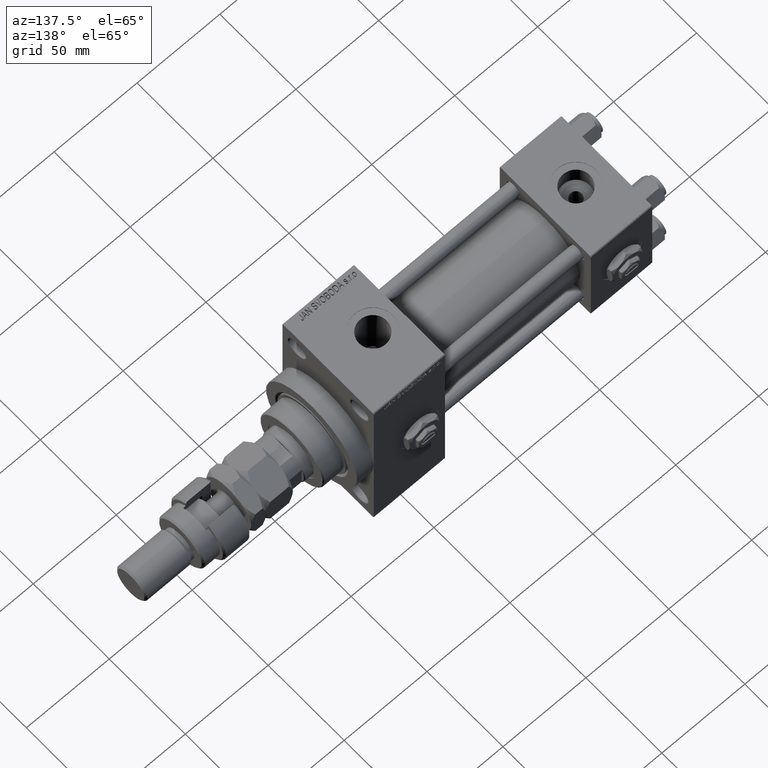
[diagram: clean part render]
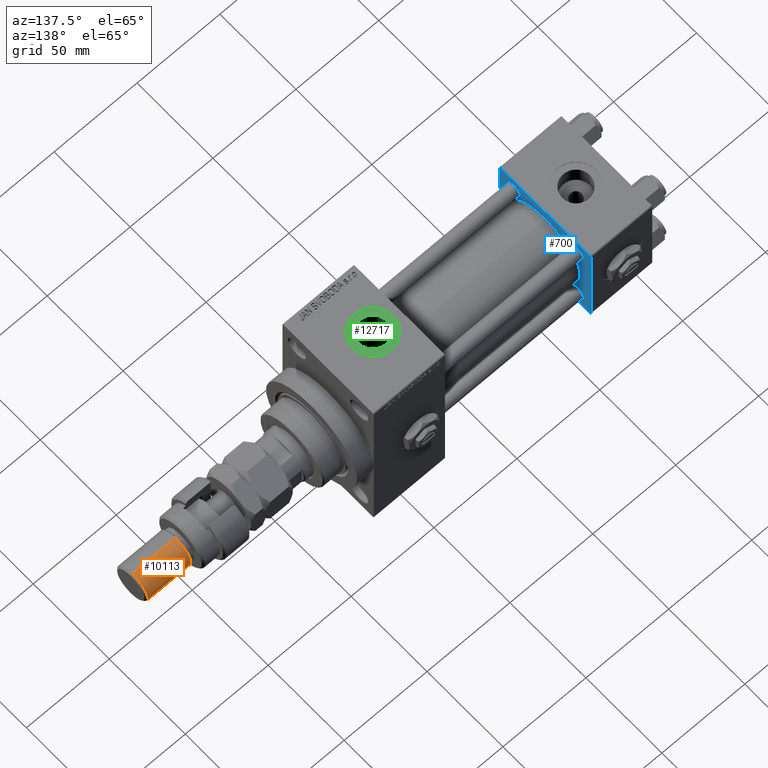
[diagram: same view with three faces highlighted in distinct colors, each labeled with its STEP entity id]
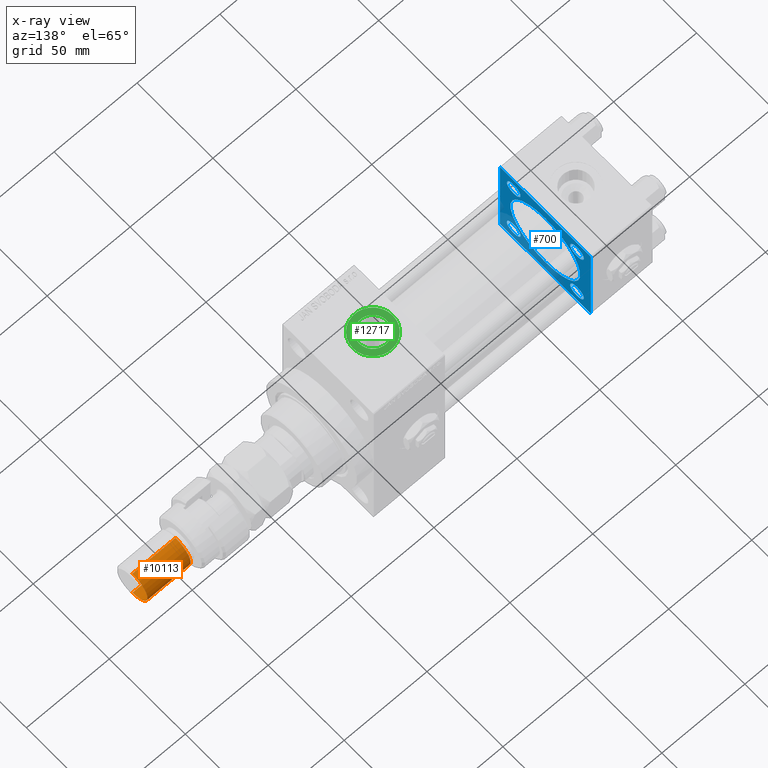
[diagram: x-ray of the same camera — body ghosted, the three highlighted faces saturated]
A machine part, auxiliary view with three faces highlighted in distinct colors.
The next image is the same camera in x-ray (body ghosted, the three faces saturated) — at least one of them is partly hidden behind the body in this view.
Their STEP definitions:

[orange] entity #10113 — the highlighted cylindrical surface (edge-blend (fillet) strip) has radius 10 mm, axis along (-1, -0, 0).
#2290 = DIRECTION ( 'NONE',  ( -0.000000000000000000, -0.000000000000000000, -1.000000000000000000 ) ) ;
#4973 = CARTESIAN_POINT ( 'NONE',  ( 10.00000000000000000, 1.224646799147353256E-15, 54.99999999999998579 ) ) ;
#6353 = EDGE_CURVE ( 'NONE', #13177, #28549, #38523, .T. ) ;
#6756 = EDGE_LOOP ( 'NONE', ( #49481, #37646, #36465, #28151 ) ) ;
#7033 = LINE ( 'NONE', #39386, #36993 ) ;
#8060 = CARTESIAN_POINT ( 'NONE',  ( -10.00000000000000000, 0.000000000000000000, 56.00000000000000711 ) ) ;
#8816 = DIRECTION ( 'NONE',  ( 0.000000000000000000, 0.000000000000000000, -1.000000000000000000 ) ) ;
#10113 = ADVANCED_FACE ( 'NONE', ( #14385 ), #18107, .T. ) ;
#10131 = DIRECTION ( 'NONE',  ( -1.000000000000000000, 0.000000000000000000, 0.000000000000000000 ) ) ;
#12570 = EDGE_CURVE ( 'NONE', #45431, #28549, #47323, .T. ) ;
#13177 = VERTEX_POINT ( 'NONE', #40495 ) ;
#14385 = FACE_OUTER_BOUND ( 'NONE', #6756, .T. ) ;
#16729 = CIRCLE ( 'NONE', #22635, 10.00000000000000000 ) ;
#17543 = AXIS2_PLACEMENT_3D ( 'NONE', #37983, #46450, #10131 ) ;
#18107 = CYLINDRICAL_SURFACE ( 'NONE', #17543, 10.00000000000000000 ) ;
#19734 = EDGE_CURVE ( 'NONE', #45431, #32339, #16729, .T. ) ;
#20491 = DIRECTION ( 'NONE',  ( 1.000000000000000000, 0.000000000000000000, 0.000000000000000000 ) ) ;
#22635 = AXIS2_PLACEMENT_3D ( 'NONE', #37716, #8816, #49901 ) ;
#24472 = DIRECTION ( 'NONE',  ( -0.000000000000000000, -0.000000000000000000, 1.000000000000000000 ) ) ;
#25045 = CARTESIAN_POINT ( 'NONE',  ( -10.00000000000000000, 0.000000000000000000, 54.99999999999998579 ) ) ;
#28151 = ORIENTED_EDGE ( 'NONE', *, *, #12570, .F. ) ;
#28445 = CARTESIAN_POINT ( 'NONE',  ( 0.000000000000000000, 0.000000000000000000, 29.00000000000000711 ) ) ;
#28549 = VERTEX_POINT ( 'NONE', #38201 ) ;
#32339 = VERTEX_POINT ( 'NONE', #4973 ) ;
#35920 = DIRECTION ( 'NONE',  ( -0.000000000000000000, -0.000000000000000000, -1.000000000000000000 ) ) ;
#36465 = ORIENTED_EDGE ( 'NONE', *, *, #6353, .T. ) ;
#36993 = VECTOR ( 'NONE', #2290, 1000.000000000000000 ) ;
#37646 = ORIENTED_EDGE ( 'NONE', *, *, #41077, .T. ) ;
#37716 = CARTESIAN_POINT ( 'NONE',  ( 0.000000000000000000, 0.000000000000000000, 54.99999999999998579 ) ) ;
#37983 = CARTESIAN_POINT ( 'NONE',  ( 0.000000000000000000, 0.000000000000000000, 56.00000000000000711 ) ) ;
#38201 = CARTESIAN_POINT ( 'NONE',  ( -10.00000000000000000, 0.000000000000000000, 29.00000000000000711 ) ) ;
#38523 = CIRCLE ( 'NONE', #48703, 10.00000000000000000 ) ;
#39386 = CARTESIAN_POINT ( 'NONE',  ( 10.00000000000000000, 1.224646799147353256E-15, 56.00000000000000711 ) ) ;
#40495 = CARTESIAN_POINT ( 'NONE',  ( 10.00000000000000000, 1.224646799147353256E-15, 29.00000000000000711 ) ) ;
#41077 = EDGE_CURVE ( 'NONE', #32339, #13177, #7033, .T. ) ;
#43604 = VECTOR ( 'NONE', #35920, 1000.000000000000000 ) ;
#45431 = VERTEX_POINT ( 'NONE', #25045 ) ;
#46450 = DIRECTION ( 'NONE',  ( -0.000000000000000000, -0.000000000000000000, -1.000000000000000000 ) ) ;
#47323 = LINE ( 'NONE', #8060, #43604 ) ;
#48703 = AXIS2_PLACEMENT_3D ( 'NONE', #28445, #24472, #20491 ) ;
#49481 = ORIENTED_EDGE ( 'NONE', *, *, #19734, .T. ) ;
#49901 = DIRECTION ( 'NONE',  ( 1.000000000000000000, 0.000000000000000000, 0.000000000000000000 ) ) ;

[blue] entity #700 — the highlighted planar face has unit normal (-1, 0, 0).
#213 = DIRECTION ( 'NONE',  ( 0.000000000000000000, 0.7071067811865474617, -0.7071067811865474617 ) ) ;
#364 = CARTESIAN_POINT ( 'NONE',  ( 37.00000000000000000, -29.50000000000000000, -30.00000000000000711 ) ) ;
#573 = AXIS2_PLACEMENT_3D ( 'NONE', #8086, #11824, #20046 ) ;
#653 = EDGE_CURVE ( 'NONE', #36767, #14816, #9541, .T. ) ;
#700 = ADVANCED_FACE ( 'NONE', ( #11106, #7897, #15882, #40251, #27275, #43424 ), #23307, .F. ) ;
#1166 = VECTOR ( 'NONE', #27630, 1000.000000000000000 ) ;
#1238 = VERTEX_POINT ( 'NONE', #30076 ) ;
#1273 = VERTEX_POINT ( 'NONE', #50732 ) ;
#1498 = ORIENTED_EDGE ( 'NONE', *, *, #44408, .F. ) ;
#1710 = DIRECTION ( 'NONE',  ( 0.000000000000000000, 0.000000000000000000, 1.000000000000000000 ) ) ;
#1938 = CARTESIAN_POINT ( 'NONE',  ( 37.00000000000000000, -30.00000000000000000, 29.99999999999999289 ) ) ;
#2538 = DIRECTION ( 'NONE',  ( 0.000000000000000000, 0.000000000000000000, 1.000000000000000000 ) ) ;
#2871 = ORIENTED_EDGE ( 'NONE', *, *, #49032, .T. ) ;
#2885 = LINE ( 'NONE', #43697, #25274 ) ;
#3413 = VECTOR ( 'NONE', #18386, 1000.000000000000000 ) ;
#3551 = ORIENTED_EDGE ( 'NONE', *, *, #42998, .T. ) ;
#3581 = EDGE_CURVE ( 'NONE', #23069, #10434, #24444, .T. ) ;
#5651 = CARTESIAN_POINT ( 'NONE',  ( 37.00000000000000711, -2.602085213965210642E-15, 23.00000000000000000 ) ) ;
#5827 = VECTOR ( 'NONE', #213, 1000.000000000000114 ) ;
#5850 = EDGE_LOOP ( 'NONE', ( #7027, #36804 ) ) ;
#5900 = LINE ( 'NONE', #1938, #3413 ) ;
#6710 = ORIENTED_EDGE ( 'NONE', *, *, #29149, .T. ) ;
#7027 = ORIENTED_EDGE ( 'NONE', *, *, #653, .T. ) ;
#7379 = CIRCLE ( 'NONE', #19366, 23.00000000000000000 ) ;
#7897 = FACE_BOUND ( 'NONE', #29691, .T. ) ;
#7909 = DIRECTION ( 'NONE',  ( -0.000000000000000000, -0.7071067811865474617, -0.7071067811865474617 ) ) ;
#8086 = CARTESIAN_POINT ( 'NONE',  ( 37.00000000000000000, 20.84999999999999787, -20.85000000000000142 ) ) ;
#8469 = EDGE_LOOP ( 'NONE', ( #35682, #27532 ) ) ;
#8711 = CARTESIAN_POINT ( 'NONE',  ( 37.00000000000000000, 20.84999999999999787, -25.35000000000003340 ) ) ;
#9541 = CIRCLE ( 'NONE', #44240, 4.500000000000031974 ) ;
#9997 = CARTESIAN_POINT ( 'NONE',  ( 37.00000000000000000, 20.84999999999999787, 20.85000000000000142 ) ) ;
#10271 = CIRCLE ( 'NONE', #39908, 4.500000000000031974 ) ;
#10434 = VERTEX_POINT ( 'NONE', #23593 ) ;
#10535 = VERTEX_POINT ( 'NONE', #44757 ) ;
#11052 = DIRECTION ( 'NONE',  ( 0.000000000000000000, -0.7071067811865474617, 0.7071067811865474617 ) ) ;
#11106 = FACE_BOUND ( 'NONE', #38210, .T. ) ;
#11406 = CARTESIAN_POINT ( 'NONE',  ( 37.00000000000000000, 29.99999999999999289, 30.00000000000000000 ) ) ;
#11684 = AXIS2_PLACEMENT_3D ( 'NONE', #13135, #35043, #1710 ) ;
#11690 = VECTOR ( 'NONE', #28884, 1000.000000000000000 ) ;
#11824 = DIRECTION ( 'NONE',  ( -1.000000000000000000, 0.000000000000000000, -0.000000000000000000 ) ) ;
#12701 = CARTESIAN_POINT ( 'NONE',  ( 37.00000000000000000, 29.99999999999999289, -30.00000000000000000 ) ) ;
#12786 = ORIENTED_EDGE ( 'NONE', *, *, #22968, .T. ) ;
#13073 = VERTEX_POINT ( 'NONE', #51633 ) ;
#13135 = CARTESIAN_POINT ( 'NONE',  ( 37.00000000000000711, -2.602085213965210642E-15, 0.000000000000000000 ) ) ;
#13311 = EDGE_CURVE ( 'NONE', #36989, #1238, #43643, .T. ) ;
#14030 = AXIS2_PLACEMENT_3D ( 'NONE', #42312, #18475, #2538 ) ;
#14218 = AXIS2_PLACEMENT_3D ( 'NONE', #9997, #14254, #26436 ) ;
#14254 = DIRECTION ( 'NONE',  ( -1.000000000000000000, 0.000000000000000000, -0.000000000000000000 ) ) ;
#14764 = DIRECTION ( 'NONE',  ( -1.000000000000000000, 0.000000000000000000, -0.000000000000000000 ) ) ;
#14816 = VERTEX_POINT ( 'NONE', #49912 ) ;
#14892 = EDGE_CURVE ( 'NONE', #27586, #20311, #35321, .T. ) ;
#15882 = FACE_BOUND ( 'NONE', #8469, .T. ) ;
#16132 = EDGE_LOOP ( 'NONE', ( #17967, #24614, #37008, #3551, #24789, #42752, #6710, #2871 ) ) ;
#16144 = CARTESIAN_POINT ( 'NONE',  ( 37.00000000000000000, -29.50000000000001066, -30.00000000000000711 ) ) ;
#16270 = VERTEX_POINT ( 'NONE', #41323 ) ;
#16498 = CARTESIAN_POINT ( 'NONE',  ( 37.00000000000000000, 20.84999999999999787, 16.34999999999996945 ) ) ;
#17964 = CARTESIAN_POINT ( 'NONE',  ( 37.00000000000000000, -20.84999999999999076, 20.85000000000000497 ) ) ;
#17967 = ORIENTED_EDGE ( 'NONE', *, *, #21049, .F. ) ;
#18292 = VERTEX_POINT ( 'NONE', #8711 ) ;
#18386 = DIRECTION ( 'NONE',  ( 0.000000000000000000, 0.000000000000000000, -1.000000000000000000 ) ) ;
#18475 = DIRECTION ( 'NONE',  ( -1.000000000000000000, 0.000000000000000000, -0.000000000000000000 ) ) ;
#18483 = DIRECTION ( 'NONE',  ( 0.000000000000000000, 0.000000000000000000, 1.000000000000000000 ) ) ;
#18497 = LINE ( 'NONE', #34655, #23543 ) ;
#18693 = CARTESIAN_POINT ( 'NONE',  ( 37.00000000000000000, 29.99999999999999289, -29.50000000000000000 ) ) ;
#18853 = LINE ( 'NONE', #11406, #36469 ) ;
#18981 = DIRECTION ( 'NONE',  ( -1.000000000000000000, 0.000000000000000000, -0.000000000000000000 ) ) ;
#19296 = CIRCLE ( 'NONE', #11684, 23.00000000000000000 ) ;
#19366 = AXIS2_PLACEMENT_3D ( 'NONE', #22099, #41437, #21309 ) ;
#19559 = CARTESIAN_POINT ( 'NONE',  ( 37.00000000000000000, 29.49999999999997868, -30.00000000000000000 ) ) ;
#20043 = VERTEX_POINT ( 'NONE', #50810 ) ;
#20046 = DIRECTION ( 'NONE',  ( 0.000000000000000000, 0.000000000000000000, 1.000000000000000000 ) ) ;
#20049 = CARTESIAN_POINT ( 'NONE',  ( 37.00000000000000000, -20.84999999999999076, 20.85000000000000497 ) ) ;
#20224 = CIRCLE ( 'NONE', #44752, 4.500000000000031974 ) ;
#20311 = VERTEX_POINT ( 'NONE', #18693 ) ;
#20659 = CARTESIAN_POINT ( 'NONE',  ( 37.00000000000000000, 29.49999999999999289, 30.00000000000000000 ) ) ;
#21049 = EDGE_CURVE ( 'NONE', #27586, #23953, #37606, .T. ) ;
#21309 = DIRECTION ( 'NONE',  ( 0.000000000000000000, 0.000000000000000000, 1.000000000000000000 ) ) ;
#22099 = CARTESIAN_POINT ( 'NONE',  ( 37.00000000000000711, -2.602085213965210642E-15, 0.000000000000000000 ) ) ;
#22180 = DIRECTION ( 'NONE',  ( 0.000000000000000000, 0.000000000000000000, 1.000000000000000000 ) ) ;
#22968 = EDGE_CURVE ( 'NONE', #1238, #36989, #20224, .T. ) ;
#23069 = VERTEX_POINT ( 'NONE', #20659 ) ;
#23307 = PLANE ( 'NONE',  #23947 ) ;
#23468 = CIRCLE ( 'NONE', #573, 4.500000000000031974 ) ;
#23543 = VECTOR ( 'NONE', #11052, 1000.000000000000114 ) ;
#23593 = CARTESIAN_POINT ( 'NONE',  ( 37.00000000000000000, -29.49999999999998579, 29.99999999999999289 ) ) ;
#23947 = AXIS2_PLACEMENT_3D ( 'NONE', #32568, #49242, #48462 ) ;
#23953 = VERTEX_POINT ( 'NONE', #364 ) ;
#24444 = LINE ( 'NONE', #36371, #1166 ) ;
#24614 = ORIENTED_EDGE ( 'NONE', *, *, #14892, .T. ) ;
#24789 = ORIENTED_EDGE ( 'NONE', *, *, #3581, .T. ) ;
#25274 = VECTOR ( 'NONE', #7909, 1000.000000000000114 ) ;
#26436 = DIRECTION ( 'NONE',  ( 0.000000000000000000, 0.000000000000000000, 1.000000000000000000 ) ) ;
#26537 = DIRECTION ( 'NONE',  ( 0.000000000000000000, 0.000000000000000000, -1.000000000000000000 ) ) ;
#27058 = CARTESIAN_POINT ( 'NONE',  ( 37.00000000000000000, -20.84999999999999076, -25.35000000000003695 ) ) ;
#27275 = FACE_BOUND ( 'NONE', #48293, .T. ) ;
#27532 = ORIENTED_EDGE ( 'NONE', *, *, #39180, .T. ) ;
#27586 = VERTEX_POINT ( 'NONE', #19559 ) ;
#27630 = DIRECTION ( 'NONE',  ( 0.000000000000000000, -1.000000000000000000, -1.156482317317871725E-16 ) ) ;
#28884 = DIRECTION ( 'NONE',  ( 0.000000000000000000, -1.000000000000000000, -1.156482317317871725E-16 ) ) ;
#29149 = EDGE_CURVE ( 'NONE', #32224, #16270, #5900, .T. ) ;
#29691 = EDGE_LOOP ( 'NONE', ( #41838, #42378 ) ) ;
#30076 = CARTESIAN_POINT ( 'NONE',  ( 37.00000000000000000, -20.84999999999999076, -16.34999999999997300 ) ) ;
#30384 = ORIENTED_EDGE ( 'NONE', *, *, #43076, .F. ) ;
#30531 = EDGE_CURVE ( 'NONE', #1273, #20311, #18853, .T. ) ;
#31272 = CARTESIAN_POINT ( 'NONE',  ( 37.00000000000000000, -30.00000000000000000, 29.49999999999999289 ) ) ;
#31314 = VERTEX_POINT ( 'NONE', #5651 ) ;
#31521 = DIRECTION ( 'NONE',  ( 0.000000000000000000, 0.000000000000000000, 1.000000000000000000 ) ) ;
#31728 = EDGE_CURVE ( 'NONE', #13073, #39862, #10271, .T. ) ;
#32224 = VERTEX_POINT ( 'NONE', #31272 ) ;
#32568 = CARTESIAN_POINT ( 'NONE',  ( 37.00000000000000000, 0.000000000000000000, 0.000000000000000000 ) ) ;
#34655 = CARTESIAN_POINT ( 'NONE',  ( 37.00000000000000000, 29.49999999999999289, 30.00000000000000000 ) ) ;
#35043 = DIRECTION ( 'NONE',  ( 1.000000000000000000, -0.000000000000000000, 0.000000000000000000 ) ) ;
#35211 = CIRCLE ( 'NONE', #46208, 4.500000000000031974 ) ;
#35254 = DIRECTION ( 'NONE',  ( -1.000000000000000000, 0.000000000000000000, -0.000000000000000000 ) ) ;
#35321 = LINE ( 'NONE', #38773, #36966 ) ;
#35682 = ORIENTED_EDGE ( 'NONE', *, *, #31728, .T. ) ;
#36371 = CARTESIAN_POINT ( 'NONE',  ( 37.00000000000000000, 29.99999999999999289, 30.00000000000000000 ) ) ;
#36469 = VECTOR ( 'NONE', #26537, 1000.000000000000000 ) ;
#36767 = VERTEX_POINT ( 'NONE', #16498 ) ;
#36804 = ORIENTED_EDGE ( 'NONE', *, *, #42795, .T. ) ;
#36966 = VECTOR ( 'NONE', #39816, 999.9999999999998863 ) ;
#36989 = VERTEX_POINT ( 'NONE', #27058 ) ;
#37008 = ORIENTED_EDGE ( 'NONE', *, *, #30531, .F. ) ;
#37076 = CIRCLE ( 'NONE', #14218, 4.500000000000031974 ) ;
#37606 = LINE ( 'NONE', #12701, #11690 ) ;
#38210 = EDGE_LOOP ( 'NONE', ( #48394, #12786 ) ) ;
#38292 = EDGE_CURVE ( 'NONE', #18292, #10535, #47890, .T. ) ;
#38665 = CARTESIAN_POINT ( 'NONE',  ( 37.00000000000000000, -20.84999999999999076, 25.35000000000003695 ) ) ;
#38773 = CARTESIAN_POINT ( 'NONE',  ( 37.00000000000000000, 29.99999999999999289, -29.50000000000000000 ) ) ;
#39180 = EDGE_CURVE ( 'NONE', #39862, #13073, #35211, .T. ) ;
#39659 = DIRECTION ( 'NONE',  ( 0.000000000000000000, 0.000000000000000000, 1.000000000000000000 ) ) ;
#39816 = DIRECTION ( 'NONE',  ( -0.000000000000000000, 0.7071067811865574537, 0.7071067811865376918 ) ) ;
#39862 = VERTEX_POINT ( 'NONE', #38665 ) ;
#39908 = AXIS2_PLACEMENT_3D ( 'NONE', #20049, #43612, #39659 ) ;
#40251 = FACE_BOUND ( 'NONE', #5850, .T. ) ;
#41108 = EDGE_CURVE ( 'NONE', #10535, #18292, #23468, .T. ) ;
#41323 = CARTESIAN_POINT ( 'NONE',  ( 37.00000000000000000, -30.00000000000000000, -29.50000000000001776 ) ) ;
#41437 = DIRECTION ( 'NONE',  ( 1.000000000000000000, -0.000000000000000000, 0.000000000000000000 ) ) ;
#41838 = ORIENTED_EDGE ( 'NONE', *, *, #38292, .T. ) ;
#42312 = CARTESIAN_POINT ( 'NONE',  ( 37.00000000000000000, 20.84999999999999787, -20.85000000000000142 ) ) ;
#42378 = ORIENTED_EDGE ( 'NONE', *, *, #41108, .T. ) ;
#42752 = ORIENTED_EDGE ( 'NONE', *, *, #43634, .T. ) ;
#42795 = EDGE_CURVE ( 'NONE', #14816, #36767, #37076, .T. ) ;
#42998 = EDGE_CURVE ( 'NONE', #1273, #23069, #18497, .T. ) ;
#43076 = EDGE_CURVE ( 'NONE', #31314, #20043, #19296, .T. ) ;
#43424 = FACE_OUTER_BOUND ( 'NONE', #16132, .T. ) ;
#43612 = DIRECTION ( 'NONE',  ( -1.000000000000000000, 0.000000000000000000, -0.000000000000000000 ) ) ;
#43634 = EDGE_CURVE ( 'NONE', #10434, #32224, #2885, .T. ) ;
#43643 = CIRCLE ( 'NONE', #44492, 4.500000000000031974 ) ;
#43697 = CARTESIAN_POINT ( 'NONE',  ( 37.00000000000000000, -30.00000000000000000, 29.49999999999999289 ) ) ;
#44240 = AXIS2_PLACEMENT_3D ( 'NONE', #51651, #52450, #31521 ) ;
#44408 = EDGE_CURVE ( 'NONE', #20043, #31314, #7379, .T. ) ;
#44492 = AXIS2_PLACEMENT_3D ( 'NONE', #50250, #18981, #22180 ) ;
#44752 = AXIS2_PLACEMENT_3D ( 'NONE', #47964, #35254, #47707 ) ;
#44757 = CARTESIAN_POINT ( 'NONE',  ( 37.00000000000000000, 20.84999999999999787, -16.34999999999996945 ) ) ;
#46208 = AXIS2_PLACEMENT_3D ( 'NONE', #17964, #14764, #18483 ) ;
#47707 = DIRECTION ( 'NONE',  ( 0.000000000000000000, 0.000000000000000000, 1.000000000000000000 ) ) ;
#47890 = CIRCLE ( 'NONE', #14030, 4.500000000000031974 ) ;
#47964 = CARTESIAN_POINT ( 'NONE',  ( 37.00000000000000000, -20.84999999999999076, -20.85000000000000497 ) ) ;
#48293 = EDGE_LOOP ( 'NONE', ( #30384, #1498 ) ) ;
#48394 = ORIENTED_EDGE ( 'NONE', *, *, #13311, .T. ) ;
#48462 = DIRECTION ( 'NONE',  ( -0.000000000000000000, 0.000000000000000000, 1.000000000000000000 ) ) ;
#49032 = EDGE_CURVE ( 'NONE', #16270, #23953, #52454, .T. ) ;
#49242 = DIRECTION ( 'NONE',  ( -1.000000000000000000, 0.000000000000000000, -0.000000000000000000 ) ) ;
#49912 = CARTESIAN_POINT ( 'NONE',  ( 37.00000000000000000, 20.84999999999999787, 25.35000000000003340 ) ) ;
#50250 = CARTESIAN_POINT ( 'NONE',  ( 37.00000000000000000, -20.84999999999999076, -20.85000000000000497 ) ) ;
#50732 = CARTESIAN_POINT ( 'NONE',  ( 37.00000000000000000, 29.99999999999999289, 29.50000000000000000 ) ) ;
#50810 = CARTESIAN_POINT ( 'NONE',  ( 37.00000000000000711, 2.146024240737016609E-16, -23.00000000000000000 ) ) ;
#51633 = CARTESIAN_POINT ( 'NONE',  ( 37.00000000000000000, -20.84999999999999076, 16.34999999999997300 ) ) ;
#51651 = CARTESIAN_POINT ( 'NONE',  ( 37.00000000000000000, 20.84999999999999787, 20.85000000000000142 ) ) ;
#52450 = DIRECTION ( 'NONE',  ( -1.000000000000000000, 0.000000000000000000, -0.000000000000000000 ) ) ;
#52454 = LINE ( 'NONE', #16144, #5827 ) ;

[green] entity #12717 — the highlighted planar face has unit normal (0, 0, 1).
#185 = DIRECTION ( 'NONE',  ( 0.000000000000000000, 0.000000000000000000, 1.000000000000000000 ) ) ;
#1943 = CARTESIAN_POINT ( 'NONE',  ( 141.0000000000000000, 6.302828629382399373E-15, 54.29999999999999716 ) ) ;
#4079 = DIRECTION ( 'NONE',  ( -0.000000000000000000, -0.000000000000000000, -1.000000000000000000 ) ) ;
#4670 = DIRECTION ( 'NONE',  ( 1.000000000000000000, 0.000000000000000000, 0.000000000000000000 ) ) ;
#6420 = DIRECTION ( 'NONE',  ( 0.000000000000000000, 0.000000000000000000, 1.000000000000000000 ) ) ;
#10234 = CIRCLE ( 'NONE', #20434, 8.330000000000003624 ) ;
#10461 = EDGE_CURVE ( 'NONE', #17472, #34605, #50553, .T. ) ;
#10962 = AXIS2_PLACEMENT_3D ( 'NONE', #28832, #24336, #4670 ) ;
#11068 = CARTESIAN_POINT ( 'NONE',  ( 149.3300000000000125, 7.322959413072145713E-15, 54.29999999999999716 ) ) ;
#11604 = CARTESIAN_POINT ( 'NONE',  ( 141.0000000000000000, 6.302828629382399373E-15, 54.29999999999999716 ) ) ;
#12429 = ORIENTED_EDGE ( 'NONE', *, *, #27169, .T. ) ;
#12717 = ADVANCED_FACE ( 'NONE', ( #34285, #45948 ), #30842, .T. ) ;
#13298 = AXIS2_PLACEMENT_3D ( 'NONE', #47432, #31011, #31800 ) ;
#15331 = DIRECTION ( 'NONE',  ( 1.000000000000000000, 0.000000000000000000, 0.000000000000000000 ) ) ;
#17453 = EDGE_LOOP ( 'NONE', ( #12429, #34372 ) ) ;
#17472 = VERTEX_POINT ( 'NONE', #21965 ) ;
#17892 = VERTEX_POINT ( 'NONE', #42737 ) ;
#19177 = EDGE_CURVE ( 'NONE', #34605, #17472, #32778, .T. ) ;
#20434 = AXIS2_PLACEMENT_3D ( 'NONE', #36173, #4079, #44624 ) ;
#20778 = AXIS2_PLACEMENT_3D ( 'NONE', #1943, #6420, #25815 ) ;
#21965 = CARTESIAN_POINT ( 'NONE',  ( 129.0000000000000000, 7.772404788359223517E-15, 54.29999999999999716 ) ) ;
#24336 = DIRECTION ( 'NONE',  ( -0.000000000000000000, -0.000000000000000000, -1.000000000000000000 ) ) ;
#24652 = EDGE_CURVE ( 'NONE', #44857, #17892, #36400, .T. ) ;
#25815 = DIRECTION ( 'NONE',  ( 1.000000000000000000, 0.000000000000000000, -0.000000000000000000 ) ) ;
#27169 = EDGE_CURVE ( 'NONE', #17892, #44857, #10234, .T. ) ;
#28832 = CARTESIAN_POINT ( 'NONE',  ( 141.0000000000000000, 6.302828629382400162E-15, 54.29999999999999716 ) ) ;
#30842 = PLANE ( 'NONE',  #20778 ) ;
#31011 = DIRECTION ( 'NONE',  ( 0.000000000000000000, 0.000000000000000000, 1.000000000000000000 ) ) ;
#31072 = AXIS2_PLACEMENT_3D ( 'NONE', #11604, #185, #15331 ) ;
#31800 = DIRECTION ( 'NONE',  ( 1.000000000000000000, 0.000000000000000000, 0.000000000000000000 ) ) ;
#32778 = CIRCLE ( 'NONE', #31072, 12.00000000000001066 ) ;
#34285 = FACE_BOUND ( 'NONE', #17453, .T. ) ;
#34372 = ORIENTED_EDGE ( 'NONE', *, *, #24652, .T. ) ;
#34605 = VERTEX_POINT ( 'NONE', #47481 ) ;
#36173 = CARTESIAN_POINT ( 'NONE',  ( 141.0000000000000000, 6.302828629382400162E-15, 54.29999999999999716 ) ) ;
#36400 = CIRCLE ( 'NONE', #10962, 8.330000000000003624 ) ;
#37848 = ORIENTED_EDGE ( 'NONE', *, *, #19177, .T. ) ;
#42737 = CARTESIAN_POINT ( 'NONE',  ( 132.6700000000000159, 6.302828629382400162E-15, 54.29999999999999716 ) ) ;
#43925 = ORIENTED_EDGE ( 'NONE', *, *, #10461, .T. ) ;
#44624 = DIRECTION ( 'NONE',  ( 1.000000000000000000, 0.000000000000000000, 0.000000000000000000 ) ) ;
#44857 = VERTEX_POINT ( 'NONE', #11068 ) ;
#45948 = FACE_OUTER_BOUND ( 'NONE', #49617, .T. ) ;
#47432 = CARTESIAN_POINT ( 'NONE',  ( 141.0000000000000000, 6.302828629382399373E-15, 54.29999999999999716 ) ) ;
#47481 = CARTESIAN_POINT ( 'NONE',  ( 153.0000000000000284, 6.302828629382399373E-15, 54.29999999999999716 ) ) ;
#49617 = EDGE_LOOP ( 'NONE', ( #37848, #43925 ) ) ;
#50553 = CIRCLE ( 'NONE', #13298, 12.00000000000001066 ) ;